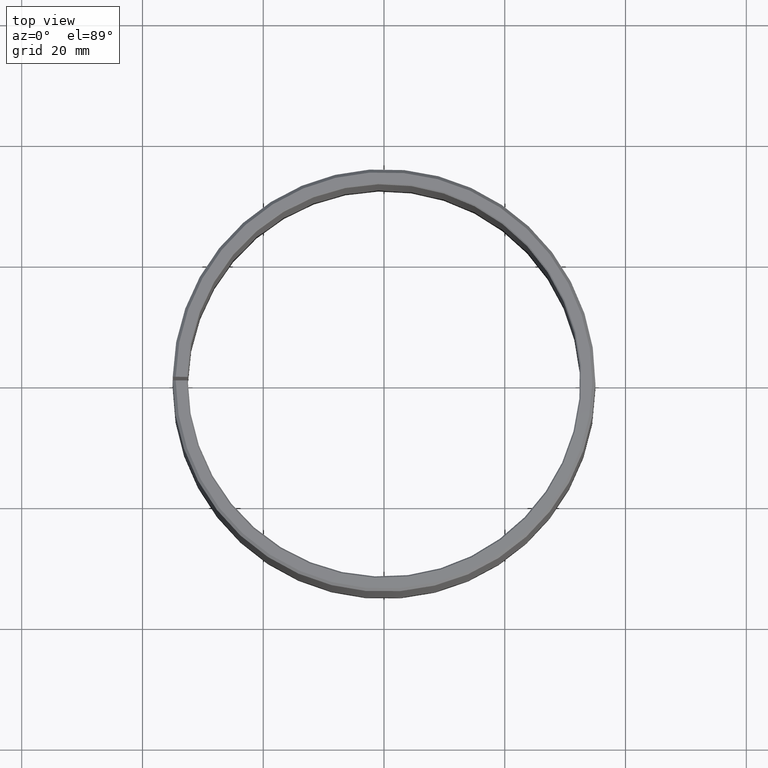
[diagram: clean part render]
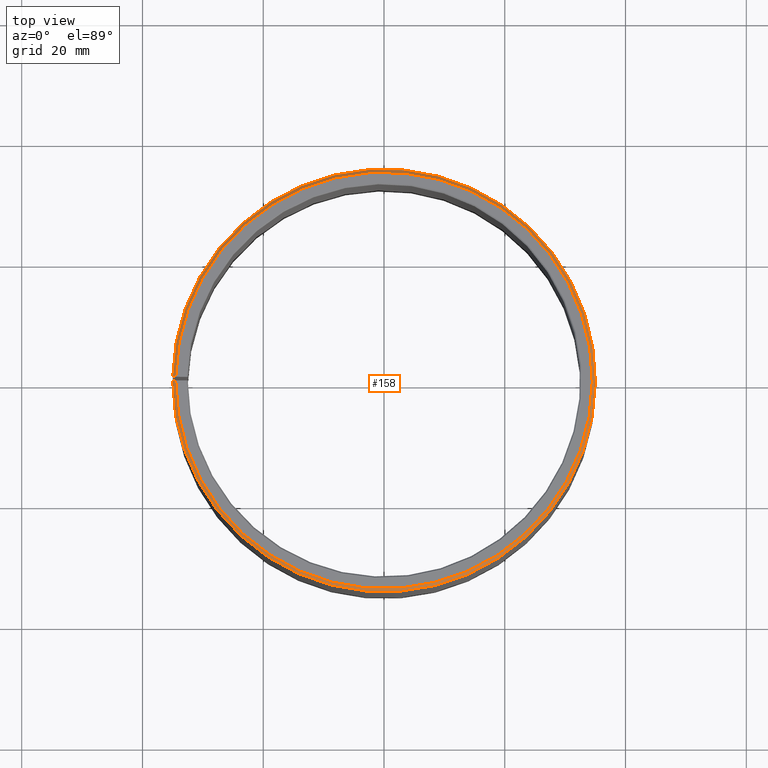
[diagram: same view with one face highlighted and labeled with its STEP entity id]
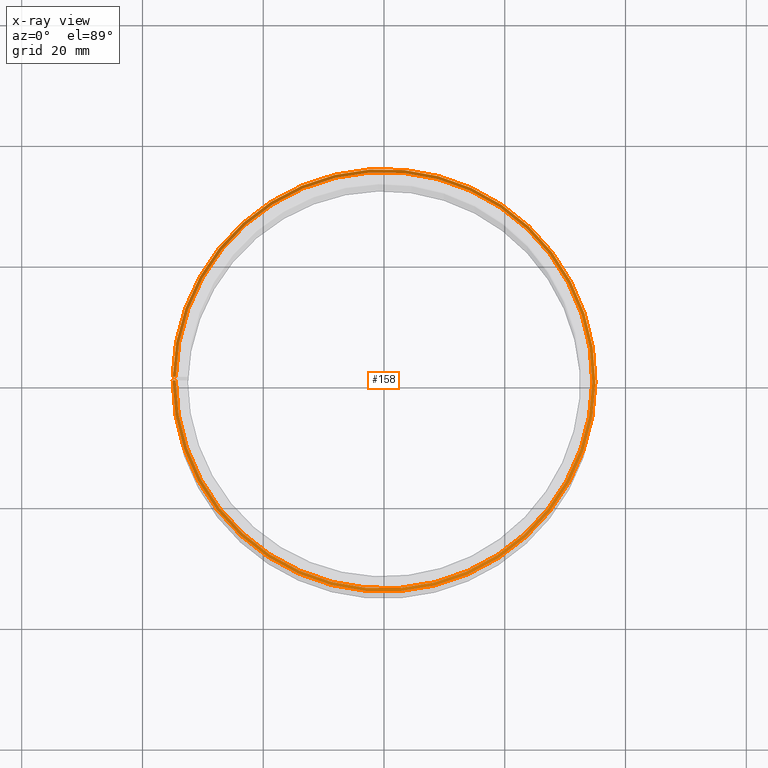
[diagram: x-ray of the same camera — body ghosted, the highlighted face saturated]
A machine part, top view. The second image highlights one B-rep face of the part: STEP entity #158.
The next image is the same camera in x-ray: the body ghosted, the highlighted face saturated — about 0% of this face is hidden behind the body in this view.
In plain terms, the highlighted conical surface has half-angle 45 deg.
Its self-contained STEP definition (entity closure, byte-faithful):
#158=ADVANCED_FACE('',(#175),#176,.T.);
#175=FACE_OUTER_BOUND('',#196,.T.);
#176=CONICAL_SURFACE('',#197,0.035,0.785398163397448);
#196=EDGE_LOOP('',(#241,#242,#243,#244));
#197=AXIS2_PLACEMENT_3D('',#245,#246,#247);
#241=ORIENTED_EDGE('',*,*,#300,.T.);
#242=ORIENTED_EDGE('',*,*,#301,.F.);
#243=ORIENTED_EDGE('',*,*,#297,.F.);
#244=ORIENTED_EDGE('',*,*,#302,.T.);
#245=CARTESIAN_POINT('',(-7.80625564189563E-018,-2.60208521396521E-018,0.0695));
#246=DIRECTION('',(6.12323399573677E-017,-0.0,-1.0));
#247=DIRECTION('',(-1.0,0.0,-6.12323399573677E-017));
#297=EDGE_CURVE('',#331,#332,#333,.T.);
#300=EDGE_CURVE('',#336,#337,#338,.T.);
#301=EDGE_CURVE('',#332,#337,#339,.T.);
#302=EDGE_CURVE('',#331,#336,#340,.T.);
#331=VERTEX_POINT('',#379);
#332=VERTEX_POINT('',#380);
#333=CIRCLE('',#381,0.035);
#336=VERTEX_POINT('',#386);
#337=VERTEX_POINT('',#387);
#338=CIRCLE('',#388,0.0345);
#339=LINE('',#389,#390);
#340=LINE('',#391,#392);
#379=CARTESIAN_POINT('',(0.000610834225304917,0.0349946693304737,0.0695));
#380=CARTESIAN_POINT('',(-7.80625564189563E-018,0.035,0.0695));
#381=AXIS2_PLACEMENT_3D('',#427,#428,#429);
#386=CARTESIAN_POINT('',(0.000602108022086275,0.0344947454828955,0.07));
#387=CARTESIAN_POINT('',(-7.80625564189563E-018,0.0345,0.07));
#388=AXIS2_PLACEMENT_3D('',#432,#433,#434);
#389=CARTESIAN_POINT('',(-7.80625564189563E-018,0.035,0.0695));
#390=VECTOR('',#435,1.0);
#391=CARTESIAN_POINT('',(0.000610834225304917,0.0349946693304737,0.0695));
#392=VECTOR('',#436,1.0);
#427=CARTESIAN_POINT('',(-7.80625564189563E-018,-2.60208521396521E-018,0.0695));
#428=DIRECTION('',(6.12323399573677E-017,0.0,-1.0));
#429=DIRECTION('',(-1.0,0.0,-6.12323399573677E-017));
#432=CARTESIAN_POINT('',(-7.80625564189563E-018,-2.60208521396521E-018,0.07));
#433=DIRECTION('',(6.12323399573677E-017,0.0,-1.0));
#434=DIRECTION('',(-1.0,0.0,-6.12323399573677E-017));
#435=DIRECTION('',(0.0,-0.707106781186548,0.707106781186548));
#436=DIRECTION('',(-0.012340714939827,-0.706999085398824,0.707106781186548));